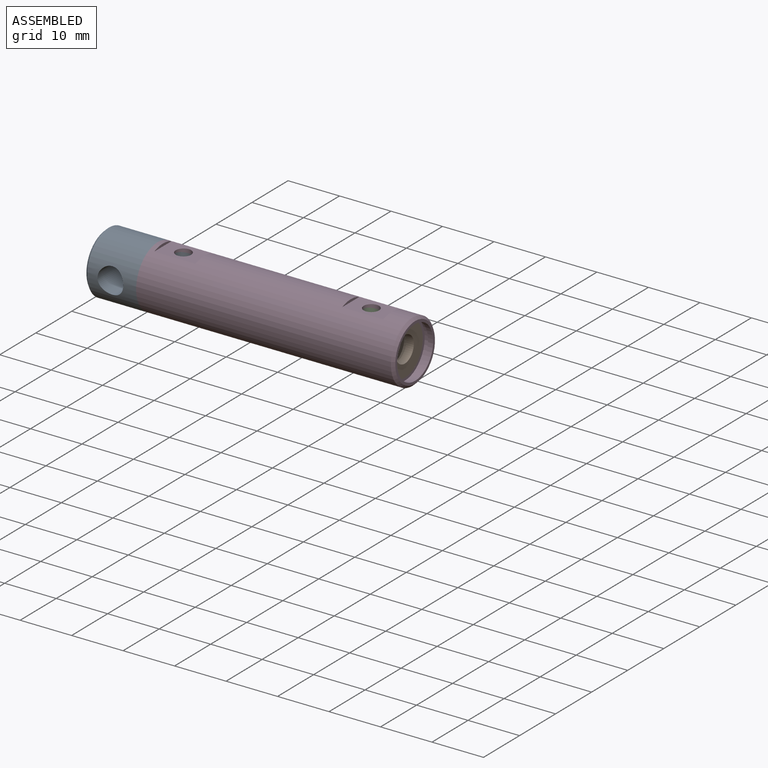
[diagram: assembled view]
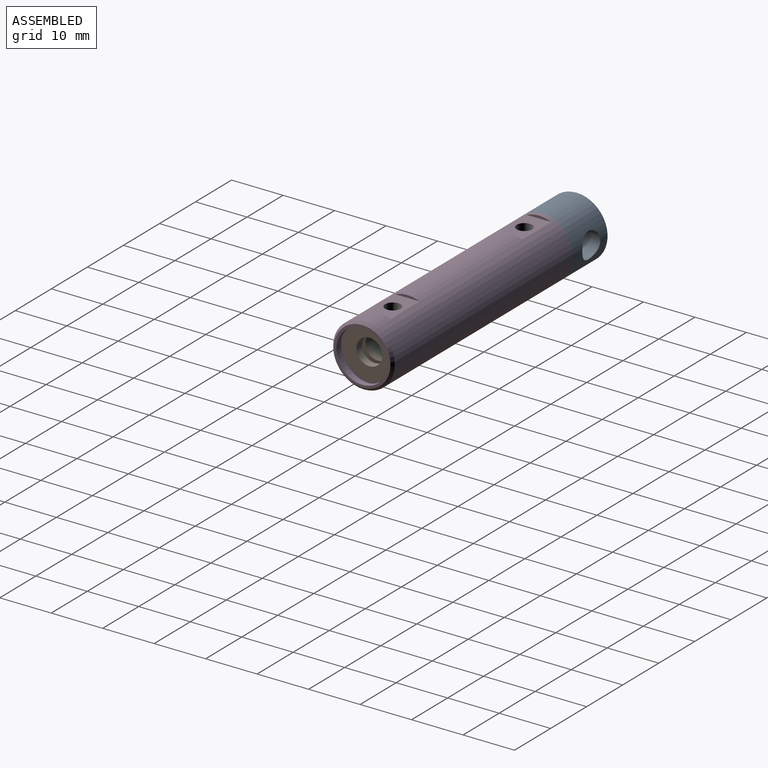
[diagram: assembled view, second angle]
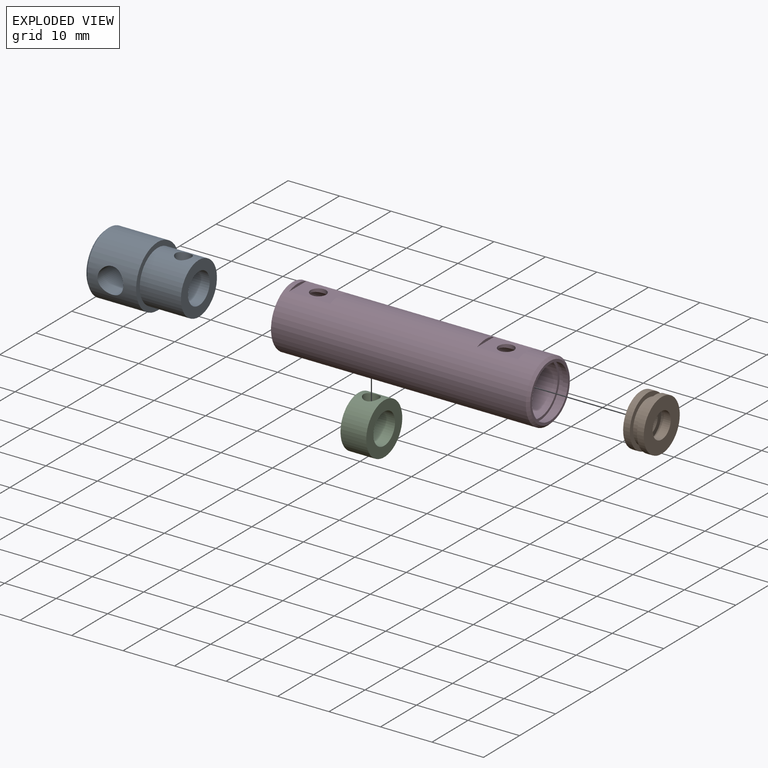
[diagram: exploded view]
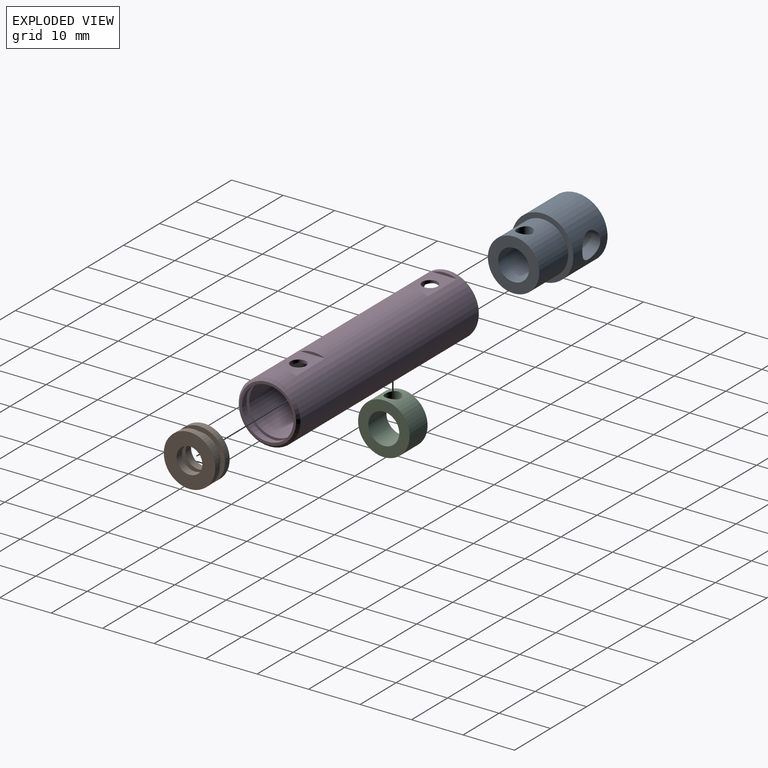
[diagram: exploded view, second angle]
ASSEMBLY  parts=4 mates=6
PART A: 10 faces, bbox 18x12x12 mm
  f0: cylinder r=5mm len=10mm, axis (-1,0,0), area 244.2mm2, adj f4,f8,f9
  f1: cylinder r=3mm len=8mm, axis (1,0,0), area 143.5mm2, adj f5,f8,f9
  f2: cylinder r=6mm len=12mm, axis (1,0,0), area 318mm2, adj f4,f6,f7
  f3: plane 11x11mm, normal (-1,0,0), area 95mm2, adj f7
  f4: plane 12x12mm, normal (1,0,0), area 34.6mm2, adj f0,f2
  f5: cone r=0mm half-angle=59deg, axis (1,0,0), area 33mm2, adj f1
  f6: cylinder r=2.5mm len=12mm, axis (0,-1,0), area 180mm2, adj f2
  f7: cone r=5.5mm half-angle=45deg, axis (1,0,0), area 25.5mm2, adj f2,f3
  f8: cylinder r=1.5mm len=3mm, axis (0,0,-1), area 19.6mm2, adj f0,f1
  f9: plane 10x10mm, normal (1,0,0), area 50.3mm2, adj f0,f1
PART B: 12 faces, bbox 4x10x10 mm
  f0: plane 10x10mm, normal (1,0,0), area 25.7mm2, adj f1,f11
  f1: cylinder r=5mm len=10mm, axis (-1,0,0), area 40.8mm2, adj f0,f2
  f2: plane 10x10mm, normal (-1,0,0), area 58.9mm2, adj f1,f3
  f3: cylinder r=2.5mm len=5mm, axis (-1,0,0), area 23.6mm2, adj f2,f4
  f4: plane 6.8x6.8mm, normal (1,0,0), area 16.7mm2, adj f3,f5
  f5: cylinder r=3.4mm len=6.8mm, axis (-1,0,0), area 21.4mm2, adj f4,f6
  f6: plane 6.8x6.8mm, normal (-1,0,0), area 16.7mm2, adj f5,f7
  f7: cylinder r=2.5mm len=5mm, axis (-1,0,0), area 23.6mm2, adj f6,f8
  f8: plane 10x10mm, normal (1,0,0), area 58.9mm2, adj f7,f9
  f9: cylinder r=5mm len=10mm, axis (-1,0,0), area 40.8mm2, adj f8,f10
  f10: plane 10x10mm, normal (-1,0,0), area 25.7mm2, adj f9,f11
  f11: cylinder r=4.1mm len=8.2mm, axis (-1,0,0), area 36.1mm2, adj f0,f10
PART C: 5 faces, bbox 5x10x10 mm
  f0: cylinder r=3mm len=6mm, axis (-1,0,0), area 86.9mm2, adj f2,f3,f4
  f1: cylinder r=5mm len=10mm, axis (-1,0,0), area 149.9mm2, adj f2,f3,f4
  f2: plane 10x10mm, normal (1,0,0), area 50.3mm2, adj f0,f1
  f3: plane 10x10mm, normal (-1,0,0), area 50.3mm2, adj f0,f1
  f4: cylinder r=1.5mm len=3mm, axis (0,0,1), area 19.6mm2, adj f0,f1
PART D: 17 faces, bbox 50x12x12 mm
  f0: cylinder r=6mm len=49.5mm, axis (-1,0,0), area 1787.2mm2, adj f6,f10,f11,f12,f13,f14,f15,f16
  f1: cylinder r=1.5mm len=3mm, axis (0,0,-1), area 5.8mm2, adj f3,f16
  f2: cylinder r=1.5mm len=3mm, axis (0,0,-1), area 5.8mm2, adj f3,f13
  f3: cylinder r=5mm len=48mm, axis (-1,0,0), area 1493.7mm2, adj f1,f2,f6,f8
  f4: cylinder r=5mm len=10mm, axis (-1,0,0), area 31.4mm2, adj f5,f9
  f5: plane 11x11mm, normal (1,0,0), area 16.5mm2, adj f4,f10
  f6: plane 12x12mm, normal (-1,0,0), area 34.6mm2, adj f0,f3
  f7: cylinder r=5.5mm len=11mm, axis (1,0,0), area 34.6mm2, adj f8,f9
  f8: plane 11x11mm, normal (1,0,0), area 16.5mm2, adj f3,f7
  f9: plane 11x11mm, normal (-1,0,0), area 16.5mm2, adj f4,f7
  f10: cone r=5.5mm half-angle=45deg, axis (-1,0,0), area 25.5mm2, adj f0,f5
  f11: plane 4.8x0.5mm, normal (-1,0,0), area 1.6mm2, adj f0,f13
  f12: plane 4.8x0.5mm, normal (1,0,0), area 1.6mm2, adj f0,f13
  f13: plane 8x4.8mm, normal (0,0,1), area 31.3mm2, adj f0,f2,f11,f12
  f14: plane 4.8x0.5mm, normal (-1,0,0), area 1.6mm2, adj f0,f16
  f15: plane 4.8x0.5mm, normal (1,0,0), area 1.6mm2, adj f0,f16
  f16: plane 8x4.8mm, normal (0,0,1), area 31.3mm2, adj f0,f1,f14,f15
PLACE A t=(-0.18,11.27,-8.96)mm
PLACE B t=(45.82,11.27,-8.96)mm
PLACE C rot(axis=(1,0,0),180deg) t=(38.82,11.27,-8.96)mm
PLACE D t=(-0.18,11.27,-8.96)mm
MATE cylindrical D.f2 <-> A.f8  axis (0,0,-1) through (4.82,11.27,-3.83)mm
MATE cylindrical C.f4 <-> D.f1  axis (0,0,-1) through (41.32,11.27,-3.95)mm
MATE cylindrical B.f1 <-> D.f3  axis (-1,0,0) through (47.07,11.27,-8.96)mm
MATE cylindrical C.f1 <-> D.f3  axis (-1,0,0) through (41.32,11.27,-8.96)mm
MATE cylindrical D.f3 <-> A.f0  axis (-1,0,0) through (-0.18,11.27,-8.96)mm
MATE planar B.f1 <-> C.f1  axis (-1,0,0) through (43.82,11.27,-8.96)mm
